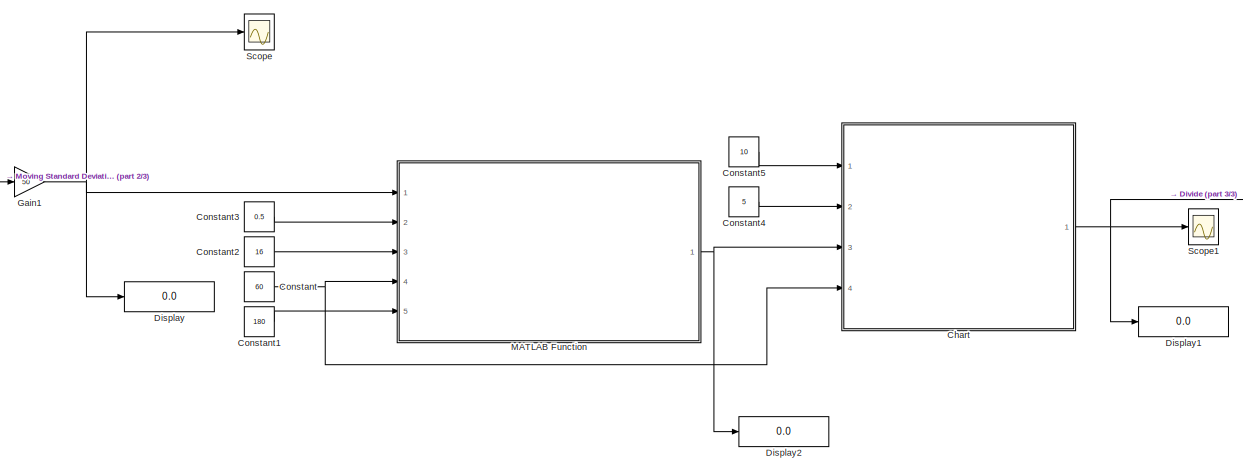
[diagram: root canvas - part 1/3, central region]
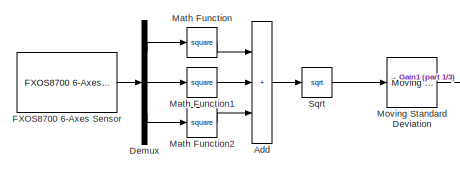
[diagram: root canvas - part 2/3, top left region]
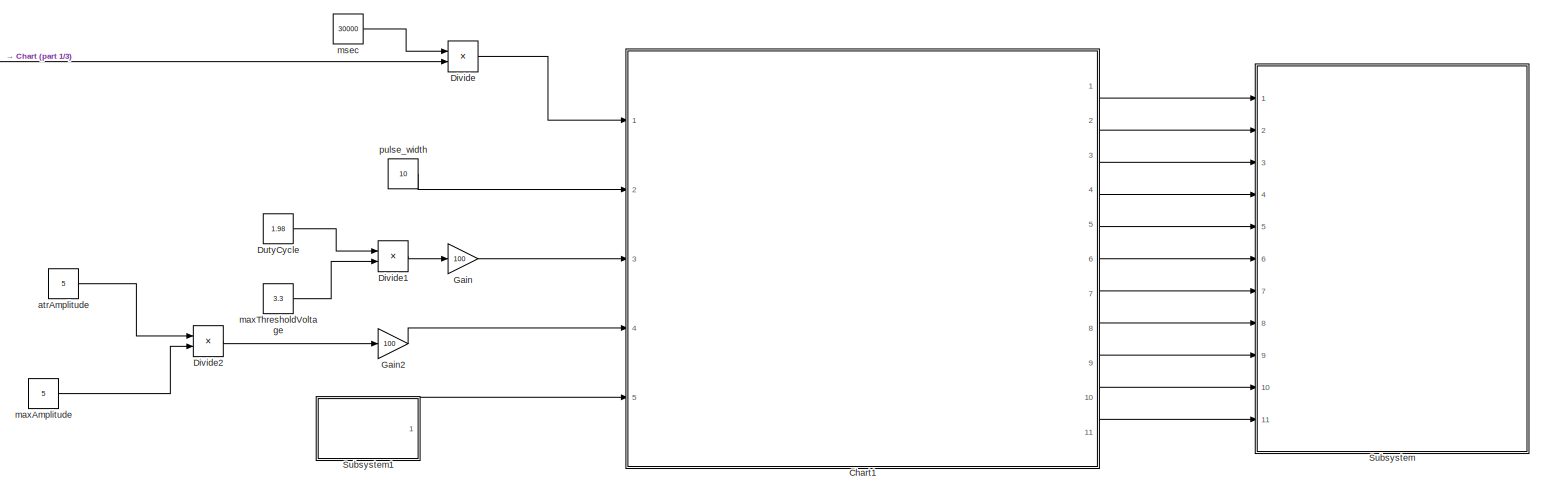
[diagram: root canvas - part 3/3, right side, full height]
MODEL slx_7b8dc81a1093
KIND model
CONFIG AbsTol = auto
CONFIG EnableMultiTasking = on
CONFIG FixedStep = 1e-3
CONFIG MaxStep = auto
CONFIG MinStep = auto
CONFIG RelTol = 1e-3
CONFIG SampleTimeConstraint = Unconstrained
CONFIG Solver = FixedStepAuto
CONFIG SolverName = FixedStepAuto
CONFIG StartTime = 0.0
CONFIG StopTime = 60.0
BLOCK [Sum] Add
  IconShape = rectangular
  Inputs = +++
  Ports = [3, 1]
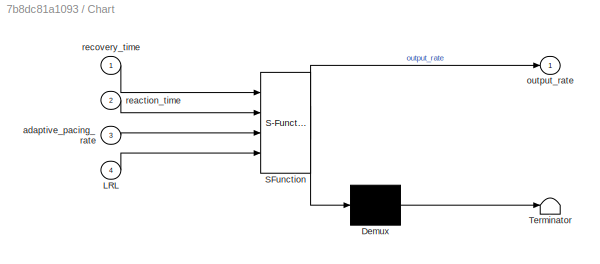
BLOCK [SubSystem] Chart
  ErrorFcn = Stateflow.Translate.translate
  PermitHierarchicalResolution = ExplicitOnly
  Ports = [4, 1]
  RequestExecContextInheritance = off
  SFBlockType = Chart
  TreatAsAtomicUnit = on
BLOCK [Demux] Chart/ Demux 
  Outputs = 1
  Ports = [1, 1]
BLOCK [S-Function] Chart/ SFunction 
  EnableBusSupport = on
  FunctionName = sf_sfun
  PortCounts = [4 2]
  Ports = [4, 2]
  SFcnIsStateOwnerBlock = off
  SFunctionDeploymentMode = off
  Tag = Stateflow S-Function 3
BLOCK [Terminator] Chart/ Terminator 
BLOCK [Inport] Chart/LRL
  Port = 4
BLOCK [Inport] Chart/adaptive_pacing_rate
  Port = 3
BLOCK [Outport] Chart/output_rate
BLOCK [Inport] Chart/reaction_time
  Port = 2
BLOCK [Inport] Chart/recovery_time
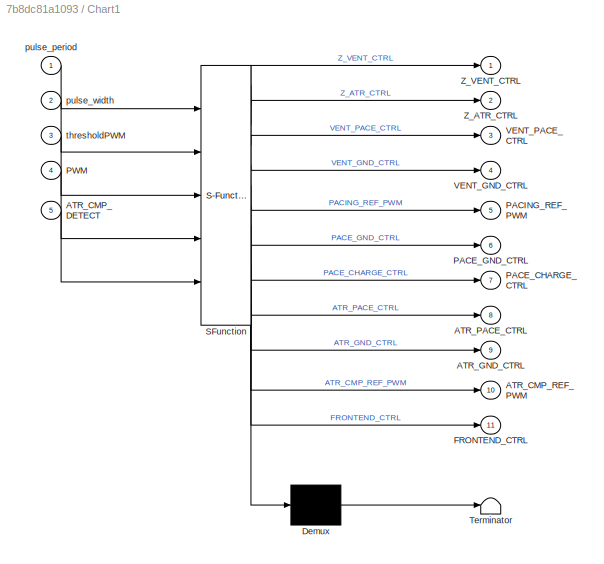
BLOCK [SubSystem] Chart1
  ErrorFcn = Stateflow.Translate.translate
  PermitHierarchicalResolution = ExplicitOnly
  Ports = [5, 11]
  RequestExecContextInheritance = off
  SFBlockType = Chart
  TreatAsAtomicUnit = on
BLOCK [Demux] Chart1/ Demux 
  Outputs = 1
  Ports = [1, 1]
BLOCK [S-Function] Chart1/ SFunction 
  EnableBusSupport = on
  FunctionName = sf_sfun
  PortCounts = [5 12]
  Ports = [5, 12]
  SFcnIsStateOwnerBlock = off
  SFunctionDeploymentMode = off
  Tag = Stateflow S-Function 1
BLOCK [Terminator] Chart1/ Terminator 
BLOCK [Inport] Chart1/ATR_CMP_DETECT
  Port = 5
BLOCK [Outport] Chart1/ATR_CMP_REF_PWM
  Port = 10
BLOCK [Outport] Chart1/ATR_GND_CTRL
  Port = 9
BLOCK [Outport] Chart1/ATR_PACE_CTRL
  Port = 8
BLOCK [Outport] Chart1/FRONTEND_CTRL
  Port = 11
BLOCK [Outport] Chart1/PACE_CHARGE_CTRL
  Port = 7
BLOCK [Outport] Chart1/PACE_GND_CTRL
  Port = 6
BLOCK [Outport] Chart1/PACING_REF_PWM
  Port = 5
BLOCK [Inport] Chart1/PWM
  Port = 4
BLOCK [Outport] Chart1/VENT_GND_CTRL
  Port = 4
BLOCK [Outport] Chart1/VENT_PACE_CTRL
  Port = 3
BLOCK [Outport] Chart1/Z_ATR_CTRL
  Port = 2
BLOCK [Outport] Chart1/Z_VENT_CTRL
BLOCK [Inport] Chart1/pulse_period
BLOCK [Inport] Chart1/pulse_width
  Port = 2
BLOCK [Inport] Chart1/thresholdPWM
  Port = 3
BLOCK [Constant] Constant
  Value = 60
BLOCK [Constant] Constant1
  Value = 180
BLOCK [Constant] Constant2
  Value = 16
BLOCK [Constant] Constant3
  Value = 0.5
BLOCK [Constant] Constant4
  Value = 5
BLOCK [Constant] Constant5
  Value = 10
BLOCK [Demux] Demux
  Outputs = 3
  Ports = [1, 3]
BLOCK [Display] Display
  Decimation = 1
  Ports = [1]
BLOCK [Display] Display1
  Decimation = 1
  Ports = [1]
BLOCK [Display] Display2
  Decimation = 1
  Ports = [1]
BLOCK [Product] Divide
  Inputs = */
  Ports = [2, 1]
BLOCK [Product] Divide1
  Inputs = */
  Ports = [2, 1]
BLOCK [Product] Divide2
  Inputs = */
  Ports = [2, 1]
BLOCK [Constant] DutyCycle
  Value = 1.98
BLOCK [Reference] FXOS8700 6-Axes Sensor  REF=frdmk64flib/FXOS8700 6-Axes Sensor
  Ports = [0, 1]
  SourceBlock = frdmk64flib/FXOS8700 6-Axes Sensor
  SourceProductBaseCode = EC_FRDM_K64F
  SourceType = freedomk64f.fxos8700
BLOCK [Gain] Gain
  Gain = 100
BLOCK [Gain] Gain1
  Gain = 50
BLOCK [Gain] Gain2
  Gain = 100
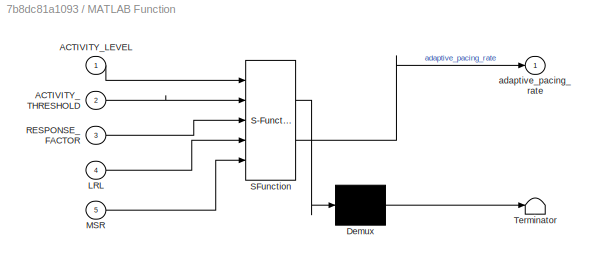
BLOCK [SubSystem] MATLAB Function
  ErrorFcn = Stateflow.Translate.translate
  PermitHierarchicalResolution = ExplicitOnly
  Ports = [5, 1]
  RequestExecContextInheritance = off
  SFBlockType = MATLAB Function
  TreatAsAtomicUnit = on
BLOCK [Demux] MATLAB Function/ Demux 
  Outputs = 1
  Ports = [1, 1]
BLOCK [S-Function] MATLAB Function/ SFunction 
  EnableBusSupport = on
  FunctionName = sf_sfun
  PortCounts = [5 2]
  Ports = [5, 2]
  SFcnIsStateOwnerBlock = off
  SFunctionDeploymentMode = off
  Tag = Stateflow S-Function 2
BLOCK [Terminator] MATLAB Function/ Terminator 
BLOCK [Inport] MATLAB Function/ACTIVITY_LEVEL
BLOCK [Inport] MATLAB Function/ACTIVITY_THRESHOLD
  Port = 2
BLOCK [Inport] MATLAB Function/LRL
  Port = 4
BLOCK [Inport] MATLAB Function/MSR
  Port = 5
BLOCK [Inport] MATLAB Function/RESPONSE_FACTOR
  Port = 3
BLOCK [Outport] MATLAB Function/adaptive_pacing_rate
  VectorParamsAs1DForOutWhenUnconnected = off
BLOCK [Math] Math Function
  Operator = square
  Ports = [1, 1]
BLOCK [Math] Math Function1
  Operator = square
  Ports = [1, 1]
BLOCK [Math] Math Function2
  Operator = square
  Ports = [1, 1]
BLOCK [Reference] Moving Standard Deviation  REF=dspstat3/Moving
Standard
Deviation
  Ports = [1, 1]
  SourceBlock = dspstat3/Moving\nStandard\nDeviation
  SourceProductBaseCode = DS
  SourceType = dsp.simulink.MovingStandardDeviation
BLOCK [Scope] Scope
  Floating = off
  NumInputPorts = 1
  Ports = [1]
  ScopeSpecificationString = Simulink.scopes.TimeScopeBlockCfg('CurrentConfiguration', extmgr.ConfigurationSet(extmgr.Configuration('Core','General UI',true),extmgr.Configuration('Core','Source UI',true),extmgr.Configuration('Sources','WiredSimulink',true,'DataLoggingVariableName','ScopeData1'),extmgr.Configuration('Visuals','Time Domain',true,'SerializedDisplays',{struct('MinYLimReal','-11.01067','MaxYLimReal','29.48864','YL...<+1546ch>
BLOCK [Scope] Scope1
  Floating = off
  NumInputPorts = 1
  Ports = [1]
  ScopeSpecificationString = Simulink.scopes.TimeScopeBlockCfg('CurrentConfiguration', extmgr.ConfigurationSet(extmgr.Configuration('Core','General UI',true),extmgr.Configuration('Core','Source UI',true),extmgr.Configuration('Sources','WiredSimulink',true),extmgr.Configuration('Visuals','Time Domain',true,'SerializedDisplays',{struct('MinYLimReal','-7.75138','MaxYLimReal','129.46627','YLabelReal','','MinYLimMag','0.00000','Ma...<+1511ch>
BLOCK [Sqrt] Sqrt
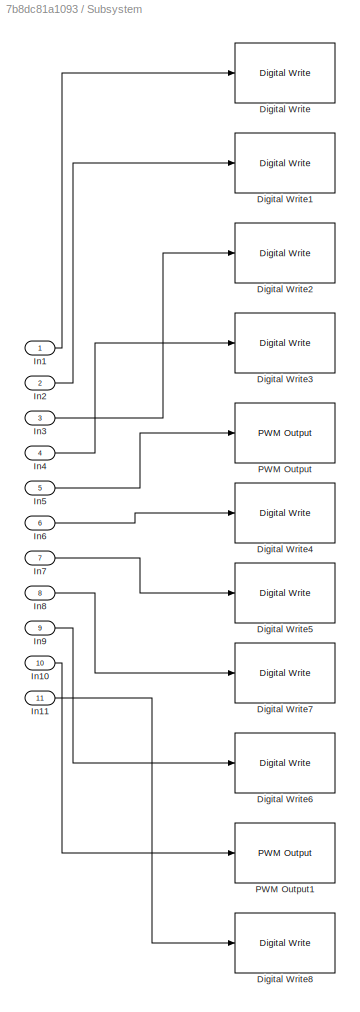
BLOCK [SubSystem] Subsystem
  Ports = [11]
  RequestExecContextInheritance = off
BLOCK [Reference] Subsystem/Digital Write  REF=frdmk64flib/Digital Write
  Ports = [1]
  SourceBlock = frdmk64flib/Digital Write
  SourceProductBaseCode = EC_FRDM_K64F
  SourceType = freedomk64f.DigitalWrite
BLOCK [Reference] Subsystem/Digital Write1  REF=frdmk64flib/Digital Write
  Ports = [1]
  SourceBlock = frdmk64flib/Digital Write
  SourceProductBaseCode = EC_FRDM_K64F
  SourceType = freedomk64f.DigitalWrite
BLOCK [Reference] Subsystem/Digital Write2  REF=frdmk64flib/Digital Write
  Ports = [1]
  SourceBlock = frdmk64flib/Digital Write
  SourceProductBaseCode = EC_FRDM_K64F
  SourceType = freedomk64f.DigitalWrite
BLOCK [Reference] Subsystem/Digital Write3  REF=frdmk64flib/Digital Write
  Ports = [1]
  SourceBlock = frdmk64flib/Digital Write
  SourceProductBaseCode = EC_FRDM_K64F
  SourceType = freedomk64f.DigitalWrite
BLOCK [Reference] Subsystem/Digital Write4  REF=frdmk64flib/Digital Write
  Ports = [1]
  SourceBlock = frdmk64flib/Digital Write
  SourceProductBaseCode = EC_FRDM_K64F
  SourceType = freedomk64f.DigitalWrite
BLOCK [Reference] Subsystem/Digital Write5  REF=frdmk64flib/Digital Write
  Ports = [1]
  SourceBlock = frdmk64flib/Digital Write
  SourceProductBaseCode = EC_FRDM_K64F
  SourceType = freedomk64f.DigitalWrite
BLOCK [Reference] Subsystem/Digital Write6  REF=frdmk64flib/Digital Write
  Ports = [1]
  SourceBlock = frdmk64flib/Digital Write
  SourceProductBaseCode = EC_FRDM_K64F
  SourceType = freedomk64f.DigitalWrite
BLOCK [Reference] Subsystem/Digital Write7  REF=frdmk64flib/Digital Write
  Ports = [1]
  SourceBlock = frdmk64flib/Digital Write
  SourceProductBaseCode = EC_FRDM_K64F
  SourceType = freedomk64f.DigitalWrite
BLOCK [Reference] Subsystem/Digital Write8  REF=frdmk64flib/Digital Write
  Ports = [1]
  SourceBlock = frdmk64flib/Digital Write
  SourceProductBaseCode = EC_FRDM_K64F
  SourceType = freedomk64f.DigitalWrite
BLOCK [Inport] Subsystem/In1
BLOCK [Inport] Subsystem/In10
  Port = 10
BLOCK [Inport] Subsystem/In11
  Port = 11
BLOCK [Inport] Subsystem/In2
  Port = 2
BLOCK [Inport] Subsystem/In3
  Port = 3
BLOCK [Inport] Subsystem/In4
  Port = 4
BLOCK [Inport] Subsystem/In5
  Port = 5
BLOCK [Inport] Subsystem/In6
  Port = 6
BLOCK [Inport] Subsystem/In7
  Port = 7
BLOCK [Inport] Subsystem/In8
  Port = 8
BLOCK [Inport] Subsystem/In9
  Port = 9
BLOCK [Reference] Subsystem/PWM Output  REF=frdmk64flib/PWM Output
  Ports = [1]
  SourceBlock = frdmk64flib/PWM Output
  SourceProductBaseCode = EC_FRDM_K64F
  SourceType = freedomk64f.PWMOutput
BLOCK [Reference] Subsystem/PWM Output1  REF=frdmk64flib/PWM Output
  Ports = [1]
  SourceBlock = frdmk64flib/PWM Output
  SourceProductBaseCode = EC_FRDM_K64F
  SourceType = freedomk64f.PWMOutput
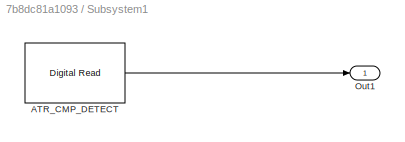
BLOCK [SubSystem] Subsystem1
  Ports = [0, 1]
  RequestExecContextInheritance = off
BLOCK [Reference] Subsystem1/ATR_CMP_DETECT  REF=frdmk64flib/Digital Read
  Ports = [0, 1]
  SourceBlock = frdmk64flib/Digital Read
  SourceProductBaseCode = EC_FRDM_K64F
  SourceType = freedomk64f.DigitalRead
BLOCK [Outport] Subsystem1/Out1
BLOCK [Constant] atrAmplitude
  Value = 5
BLOCK [Constant] maxAmplitude
  Value = 5
BLOCK [Constant] maxThresholdVoltage
  Value = 3.3
BLOCK [Constant] msec
  Value = 30000
BLOCK [Constant] pulse_width
  Value = 10
LINE Add:1 -> Sqrt:1
LINE Chart1:1 -> Subsystem:1
LINE Chart1:10 -> Subsystem:10
LINE Chart1:11 -> Subsystem:11
LINE Chart1:2 -> Subsystem:2
LINE Chart1:3 -> Subsystem:3
LINE Chart1:4 -> Subsystem:4
LINE Chart1:5 -> Subsystem:5
LINE Chart1:6 -> Subsystem:6
LINE Chart1:7 -> Subsystem:7
LINE Chart1:8 -> Subsystem:8
LINE Chart1:9 -> Subsystem:9
NET Chart:1 -> Display1:1, Divide:2, Scope1:1
LINE Constant1:1 -> MATLAB Function:5
LINE Constant2:1 -> MATLAB Function:3
LINE Constant3:1 -> MATLAB Function:2
LINE Constant4:1 -> Chart:2
LINE Constant5:1 -> Chart:1
NET Constant:1 -> Chart:4, MATLAB Function:4
LINE Demux:1 -> Math Function:1
LINE Demux:2 -> Math Function1:1
LINE Demux:3 -> Math Function2:1
LINE Divide1:1 -> Gain:1
LINE Divide2:1 -> Gain2:1
LINE Divide:1 -> Chart1:1
LINE DutyCycle:1 -> Divide1:1
LINE FXOS8700 6-Axes Sensor:1 -> Demux:1
NET Gain1:1 -> Display:1, MATLAB Function:1, Scope:1
LINE Gain2:1 -> Chart1:4
LINE Gain:1 -> Chart1:3
NET MATLAB Function:1 -> Chart:3, Display2:1
LINE Math Function1:1 -> Add:2
LINE Math Function2:1 -> Add:3
LINE Math Function:1 -> Add:1
LINE Moving Standard Deviation:1 -> Gain1:1
LINE Sqrt:1 -> Moving Standard Deviation:1
LINE Subsystem/In10:1 -> Subsystem/PWM Output1:1
LINE Subsystem/In11:1 -> Subsystem/Digital Write8:1
LINE Subsystem/In1:1 -> Subsystem/Digital Write:1
LINE Subsystem/In2:1 -> Subsystem/Digital Write1:1
LINE Subsystem/In3:1 -> Subsystem/Digital Write2:1
LINE Subsystem/In4:1 -> Subsystem/Digital Write3:1
LINE Subsystem/In5:1 -> Subsystem/PWM Output:1
LINE Subsystem/In6:1 -> Subsystem/Digital Write4:1
LINE Subsystem/In7:1 -> Subsystem/Digital Write5:1
LINE Subsystem/In8:1 -> Subsystem/Digital Write7:1
LINE Subsystem/In9:1 -> Subsystem/Digital Write6:1
LINE Subsystem1/ATR_CMP_DETECT:1 -> Subsystem1/Out1:1
LINE Subsystem1:1 -> Chart1:5
LINE atrAmplitude:1 -> Divide2:1
LINE maxAmplitude:1 -> Divide2:2
LINE maxThresholdVoltage:1 -> Divide1:2
LINE msec:1 -> Divide:1
LINE pulse_width:1 -> Chart1:2
note: NET lines group one-source signal fan-out (src -> all destinations, sorted); 1:1 wires keep LINE
CHART Chart1 states=3 transitions=5
  STATE_LABEL 'Idle\nentry:\n%Set threshold\nATR_CMP_REF_PWM = thresholdPWM;\nFRONTEND_CTRL = 1;\n'
  STATE_LABEL 'AVpacing\nentry:\nPACE_CHARGE_CTRL = 0;\nPACE_GND_CTRL = 1;\nATR_PACE_CTRL = 1;\nATR_GND_CTRL = 0;\nZ_ATR_CTRL = 0;\nZ_VENT_CTRL = 0;\nVENT_GND_CTRL = 0;\nVENT_PACE_CTRL = 0;\nPACING_REF_PWM = PWM;\n'
  STATE_LABEL 'ChargeDischarge\nentry:\n%C22\nATR_PACE_CTRL = 0;\nVENT_PACE_CTRL = 0;\nPACING_REF_PWM = PWM;\nPACE_CHARGE_CTRL = 1;\n%C21\nPACE_GND_CTRL = 1;\nVENT_PACE_CTRL = 0;\nZ_ATR_CTRL = 0;\nZ_VENT_CTRL = 0;\nATR_GND_CTRL = 1;\nVENT_GND_CTRL = 0;\n'
CHART MATLAB Function states=1 transitions=1
  STATE_LABEL 'eML_blk_kernel()'
  STATE_LABEL 'SCRIPT:\nfunction adaptive_pacing_rate = fcn(ACTIVITY_LEVEL, ACTIVITY_THRESHOLD, RESPONSE_FACTOR, LRL , MSR)\n    if ACTIVITY_LEVEL <= ACTIVITY_THRESHOLD\n        adaptive_pacing_rate = LRL; \n    else\n        slope = 2.5*RESPONSE_FACTOR;\n        b = LRL - (slope*ACTIVITY_THRESHOLD);\n        linear_rate_response = (slope*ACTIVITY_LEVEL) + b;\n        if(linear_rate_response >= MSR)\n           adaptive_...<+113ch>'
CHART Chart states=4 transitions=6
  STATE_LABEL 'IDLE\nentry:\noutput_rate = LRL;'
  STATE_LABEL 'INIT\nentry:\n%The slope of the time response curves\nstep_up = abs((adaptive_pacing_rate - output_rate)/reaction_time);\nstep_down = abs((adaptive_pacing_rate - output_rate)/recovery_time);\n'
  STATE_LABEL 'STEP_DOWN\nentry:\noutput_rate = output_rate - step_down;'
  STATE_LABEL 'STEP_UP\nentry:\noutput_rate = output_rate + step_up;'
CHART  states=0 transitions=0
CHART  states=0 transitions=0
CHART  states=0 transitions=0
